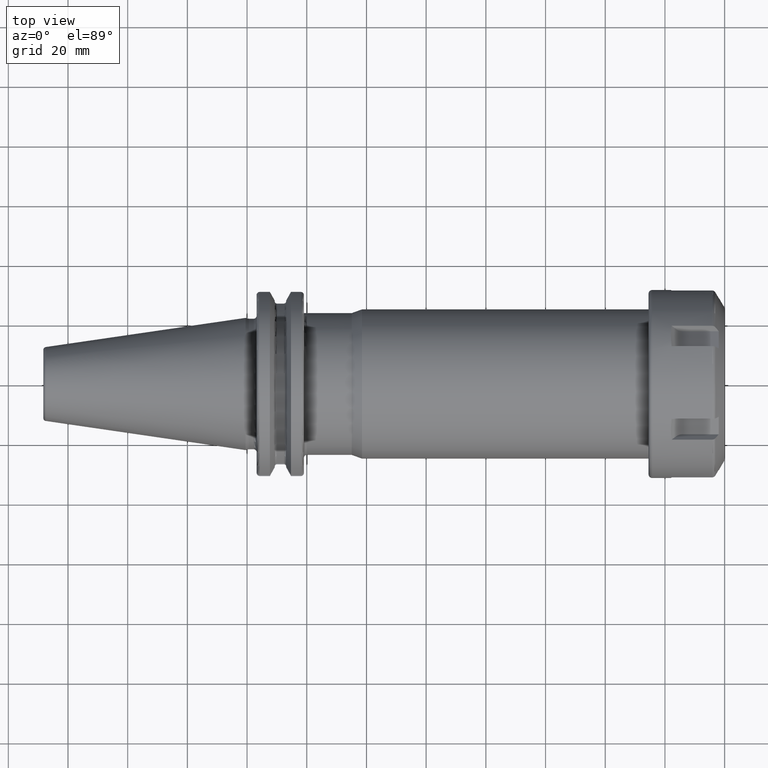
[diagram: clean part render]
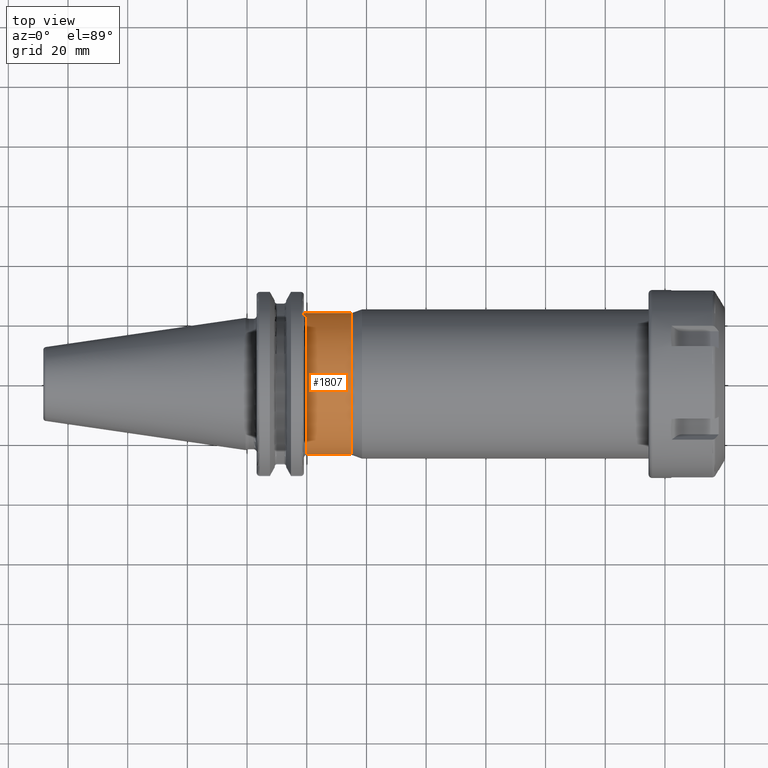
[diagram: same view with one face highlighted and labeled with its STEP entity id]
A machine part, top view. The second image highlights one B-rep face of the part: STEP entity #1807.
In plain terms, the highlighted cylindrical surface (partial cylindrical patch) has radius 23.75 mm, axis along (1, 0, 0).
Its self-contained STEP definition (entity closure, byte-faithful):
#205=CARTESIAN_POINT('',(2.005E1,0.E0,0.E0));
#206=DIRECTION('',(1.E0,0.E0,0.E0));
#207=DIRECTION('',(0.E0,9.494736842105E-1,3.138466552183E-1));
#208=AXIS2_PLACEMENT_3D('',#205,#206,#207);
#210=DIRECTION('',(-1.E0,0.E0,-1.421085471520E-14));
#211=VECTOR('',#210,1.E0);
#212=CARTESIAN_POINT('',(2.005E1,2.255E1,7.453858061434E0));
#213=LINE('',#212,#211);
#214=CARTESIAN_POINT('',(3.505E1,0.E0,0.E0));
#215=DIRECTION('',(1.E0,0.E0,0.E0));
#216=DIRECTION('',(0.E0,1.E0,0.E0));
#217=AXIS2_PLACEMENT_3D('',#214,#215,#216);
#219=CARTESIAN_POINT('',(1.905E1,0.E0,0.E0));
#220=DIRECTION('',(1.E0,0.E0,0.E0));
#221=DIRECTION('',(0.E0,1.E0,0.E0));
#222=AXIS2_PLACEMENT_3D('',#219,#220,#221);
#234=DIRECTION('',(-1.E0,0.E0,-1.172031299173E-12));
#235=VECTOR('',#234,1.5E1);
#236=CARTESIAN_POINT('',(3.505E1,-2.375E1,0.E0));
#237=LINE('',#236,#235);
#243=DIRECTION('',(-1.E0,0.E0,0.E0));
#244=VECTOR('',#243,1.6E1);
#245=CARTESIAN_POINT('',(3.505E1,2.375E1,0.E0));
#246=LINE('',#245,#244);
#1479=CARTESIAN_POINT('',(3.505E1,2.375E1,0.E0));
#1481=VERTEX_POINT('',#1479);
#1482=CARTESIAN_POINT('',(1.905E1,2.375E1,0.E0));
#1483=VERTEX_POINT('',#1482);
#1485=CARTESIAN_POINT('',(3.505E1,-2.375E1,0.E0));
#1487=VERTEX_POINT('',#1485);
#1488=CARTESIAN_POINT('',(2.005E1,-2.375E1,0.E0));
#1490=VERTEX_POINT('',#1488);
#1492=CARTESIAN_POINT('',(2.005E1,2.255E1,7.453858061434E0));
#1493=VERTEX_POINT('',#1492);
#1503=CARTESIAN_POINT('',(1.905E1,2.255E1,7.453858061434E0));
#1504=VERTEX_POINT('',#1503);
#1790=CARTESIAN_POINT('',(1.27525E1,0.E0,0.E0));
#1791=DIRECTION('',(1.E0,0.E0,0.E0));
#1792=DIRECTION('',(0.E0,-1.E0,0.E0));
#1793=AXIS2_PLACEMENT_3D('',#1790,#1791,#1792);
#1794=CYLINDRICAL_SURFACE('',#1793,2.375E1);
#1795=ORIENTED_EDGE('',*,*,#1777,.F.);
#1796=ORIENTED_EDGE('',*,*,#1688,.T.);
#1798=ORIENTED_EDGE('',*,*,#1797,.F.);
#1800=ORIENTED_EDGE('',*,*,#1799,.F.);
#1802=ORIENTED_EDGE('',*,*,#1801,.T.);
#1804=ORIENTED_EDGE('',*,*,#1803,.T.);
#1805=EDGE_LOOP('',(#1795,#1796,#1798,#1800,#1802,#1804));
#1806=FACE_OUTER_BOUND('',#1805,.F.);
#1807=ADVANCED_FACE('',(#1806),#1794,.T.);
#209=CIRCLE('',#208,2.375E1);
#218=CIRCLE('',#217,2.375E1);
#223=CIRCLE('',#222,2.375E1);
#1688=EDGE_CURVE('',#1493,#1504,#213,.T.);
#1777=EDGE_CURVE('',#1493,#1490,#209,.T.);
#1797=EDGE_CURVE('',#1483,#1504,#223,.T.);
#1799=EDGE_CURVE('',#1481,#1483,#246,.T.);
#1801=EDGE_CURVE('',#1481,#1487,#218,.T.);
#1803=EDGE_CURVE('',#1487,#1490,#237,.T.);